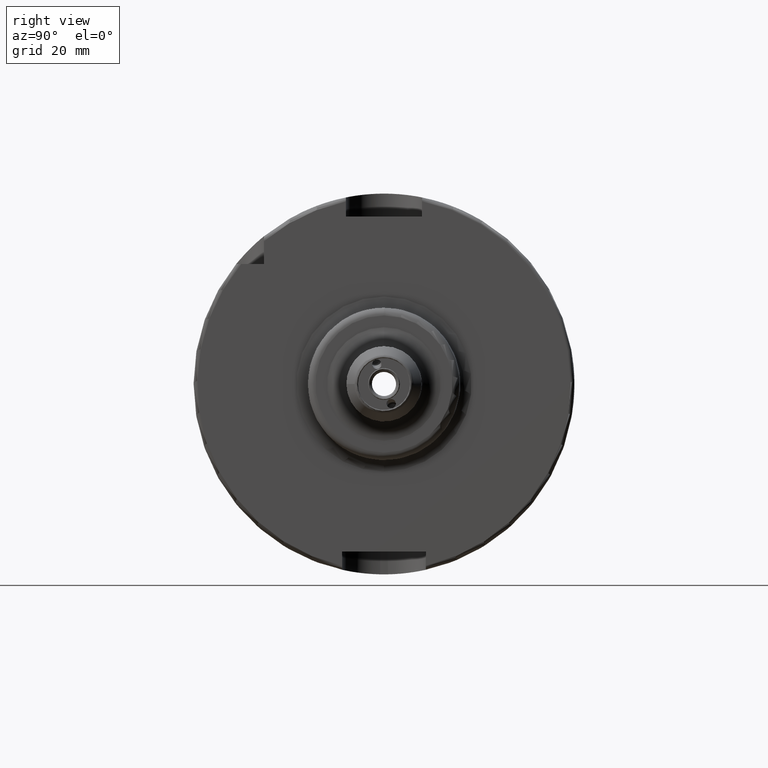
[diagram: clean part render]
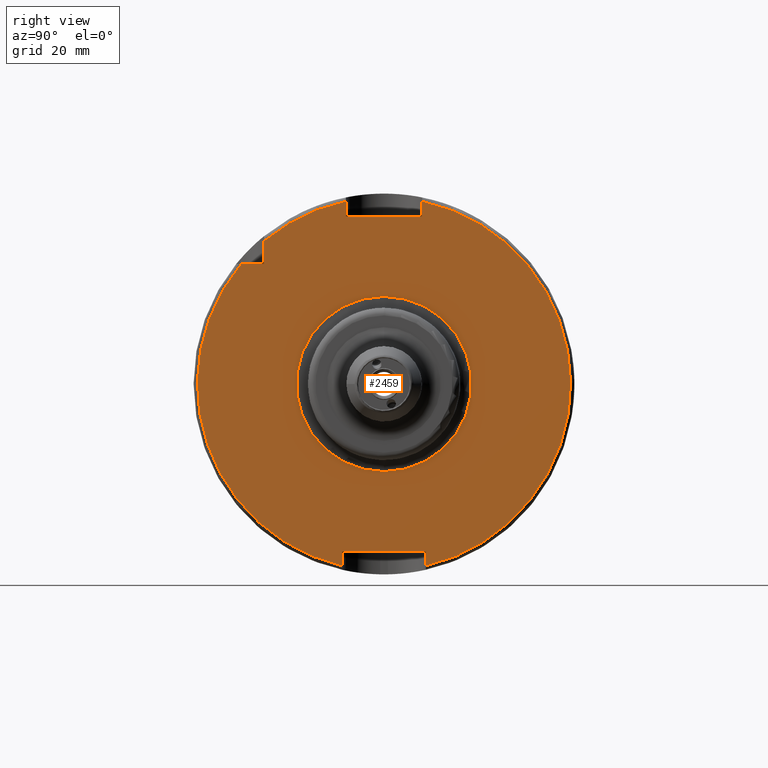
[diagram: same view with one face highlighted and labeled with its STEP entity id]
A machine part, right view. The second image highlights one B-rep face of the part: STEP entity #2459.
In plain terms, the highlighted planar face has unit normal (1, 0, 0).
Its self-contained STEP definition (entity closure, byte-faithful):
#66=FACE_BOUND('',#586,.T.);
#80=PLANE('',#2654);
#151=CIRCLE('',#2653,23.);
#152=CIRCLE('',#2655,49.);
#153=CIRCLE('',#2656,49.);
#154=CIRCLE('',#2657,49.);
#445=FACE_OUTER_BOUND('',#585,.T.);
#585=EDGE_LOOP('',(#1790,#1791,#1792,#1793,#1794,#1795,#1796,#1797,#1798,
#1799,#1800));
#586=EDGE_LOOP('',(#1801));
#799=LINE('',#4019,#919);
#800=LINE('',#4023,#920);
#801=LINE('',#4025,#921);
#802=LINE('',#4027,#922);
#803=LINE('',#4031,#923);
#804=LINE('',#4033,#924);
#805=LINE('',#4035,#925);
#806=LINE('',#4038,#926);
#919=VECTOR('',#3030,10.);
#920=VECTOR('',#3033,10.);
#921=VECTOR('',#3034,10.);
#922=VECTOR('',#3035,10.);
#923=VECTOR('',#3038,10.);
#924=VECTOR('',#3039,10.);
#925=VECTOR('',#3040,10.);
#926=VECTOR('',#3043,10.);
#1083=VERTEX_POINT('',#4013);
#1084=VERTEX_POINT('',#4017);
#1085=VERTEX_POINT('',#4018);
#1086=VERTEX_POINT('',#4020);
#1087=VERTEX_POINT('',#4022);
#1088=VERTEX_POINT('',#4024);
#1089=VERTEX_POINT('',#4026);
#1090=VERTEX_POINT('',#4028);
#1091=VERTEX_POINT('',#4030);
#1092=VERTEX_POINT('',#4032);
#1093=VERTEX_POINT('',#4034);
#1094=VERTEX_POINT('',#4036);
#1351=EDGE_CURVE('',#1083,#1083,#151,.T.);
#1352=EDGE_CURVE('',#1084,#1085,#799,.T.);
#1353=EDGE_CURVE('',#1085,#1086,#152,.T.);
#1354=EDGE_CURVE('',#1086,#1087,#800,.T.);
#1355=EDGE_CURVE('',#1087,#1088,#801,.T.);
#1356=EDGE_CURVE('',#1088,#1089,#802,.T.);
#1357=EDGE_CURVE('',#1089,#1090,#153,.T.);
#1358=EDGE_CURVE('',#1090,#1091,#803,.T.);
#1359=EDGE_CURVE('',#1091,#1092,#804,.T.);
#1360=EDGE_CURVE('',#1092,#1093,#805,.T.);
#1361=EDGE_CURVE('',#1093,#1094,#154,.T.);
#1362=EDGE_CURVE('',#1094,#1084,#806,.T.);
#1790=ORIENTED_EDGE('',*,*,#1352,.T.);
#1791=ORIENTED_EDGE('',*,*,#1353,.T.);
#1792=ORIENTED_EDGE('',*,*,#1354,.T.);
#1793=ORIENTED_EDGE('',*,*,#1355,.T.);
#1794=ORIENTED_EDGE('',*,*,#1356,.T.);
#1795=ORIENTED_EDGE('',*,*,#1357,.T.);
#1796=ORIENTED_EDGE('',*,*,#1358,.T.);
#1797=ORIENTED_EDGE('',*,*,#1359,.T.);
#1798=ORIENTED_EDGE('',*,*,#1360,.T.);
#1799=ORIENTED_EDGE('',*,*,#1361,.T.);
#1800=ORIENTED_EDGE('',*,*,#1362,.T.);
#1801=ORIENTED_EDGE('',*,*,#1351,.F.);
#2459=ADVANCED_FACE('',(#445,#66),#80,.T.);
#2653=AXIS2_PLACEMENT_3D('',#4015,#3026,#3027);
#2654=AXIS2_PLACEMENT_3D('',#4016,#3028,#3029);
#2655=AXIS2_PLACEMENT_3D('',#4021,#3031,#3032);
#2656=AXIS2_PLACEMENT_3D('',#4029,#3036,#3037);
#2657=AXIS2_PLACEMENT_3D('',#4037,#3041,#3042);
#3026=DIRECTION('center_axis',(1.,0.,0.));
#3027=DIRECTION('ref_axis',(0.,-1.,-1.22464679914735E-16));
#3028=DIRECTION('center_axis',(1.,0.,0.));
#3029=DIRECTION('ref_axis',(0.,0.,-1.));
#3030=DIRECTION('',(0.,-1.,0.));
#3031=DIRECTION('center_axis',(1.,0.,0.));
#3032=DIRECTION('ref_axis',(0.,0.,-1.));
#3033=DIRECTION('',(0.,0.,1.));
#3034=DIRECTION('',(0.,1.,0.));
#3035=DIRECTION('',(0.,0.,-1.));
#3036=DIRECTION('center_axis',(1.,0.,0.));
#3037=DIRECTION('ref_axis',(0.,0.,-1.));
#3038=DIRECTION('',(0.,0.,-1.));
#3039=DIRECTION('',(0.,-1.,0.));
#3040=DIRECTION('',(0.,0.,1.));
#3041=DIRECTION('center_axis',(1.,0.,0.));
#3042=DIRECTION('ref_axis',(0.,0.,-1.));
#3043=DIRECTION('',(0.,0.,-1.));
#4013=CARTESIAN_POINT('',(29.,-2.81668763803891E-15,-23.));
#4015=CARTESIAN_POINT('Origin',(29.,0.,0.));
#4016=CARTESIAN_POINT('Origin',(29.,0.,0.));
#4017=CARTESIAN_POINT('',(29.,-31.5,31.5));
#4018=CARTESIAN_POINT('',(29.,-37.5333185316726,31.5));
#4019=CARTESIAN_POINT('',(29.,-18.25,31.5));
#4020=CARTESIAN_POINT('',(29.,-11.,-47.7493455452533));
#4021=CARTESIAN_POINT('Origin',(29.,0.,0.));
#4022=CARTESIAN_POINT('',(29.,-11.,-44.));
#4023=CARTESIAN_POINT('',(29.,-11.,-22.));
#4024=CARTESIAN_POINT('',(29.,11.,-44.));
#4025=CARTESIAN_POINT('',(29.,-5.55111512312578E-16,-44.));
#4026=CARTESIAN_POINT('',(29.,11.,-47.7493455452533));
#4027=CARTESIAN_POINT('',(29.,11.,-22.));
#4028=CARTESIAN_POINT('',(29.,10.,47.9687398208458));
#4029=CARTESIAN_POINT('Origin',(29.,0.,0.));
#4030=CARTESIAN_POINT('',(29.,10.,44.));
#4031=CARTESIAN_POINT('',(29.,10.,22.));
#4032=CARTESIAN_POINT('',(29.,-10.,44.));
#4033=CARTESIAN_POINT('',(29.,0.,44.));
#4034=CARTESIAN_POINT('',(29.,-10.,47.9687398208458));
#4035=CARTESIAN_POINT('',(29.,-10.,22.));
#4036=CARTESIAN_POINT('',(29.,-31.5,37.5333185316726));
#4037=CARTESIAN_POINT('Origin',(29.,0.,0.));
#4038=CARTESIAN_POINT('',(29.,-31.5,15.75));